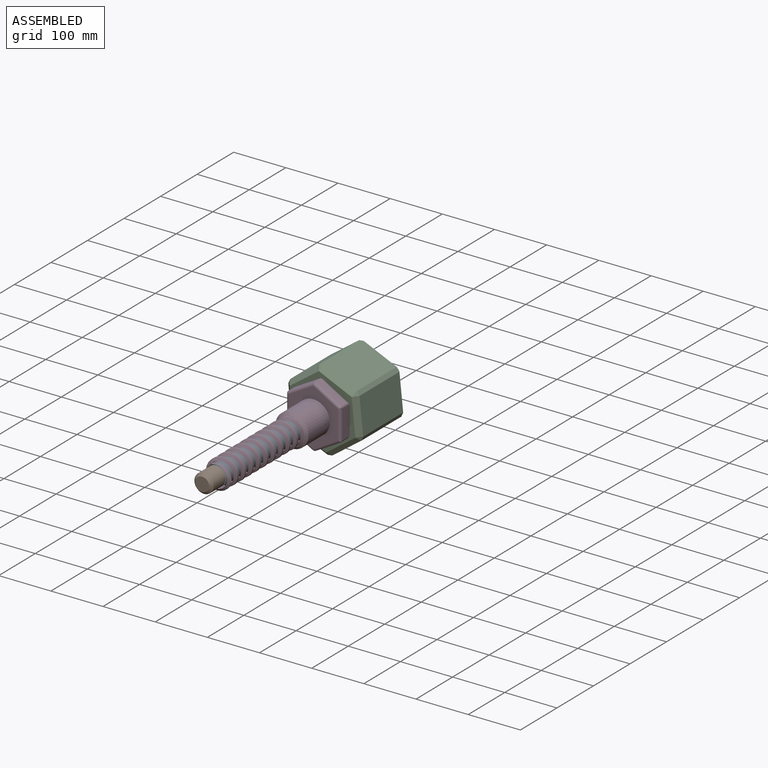
[diagram: assembled view]
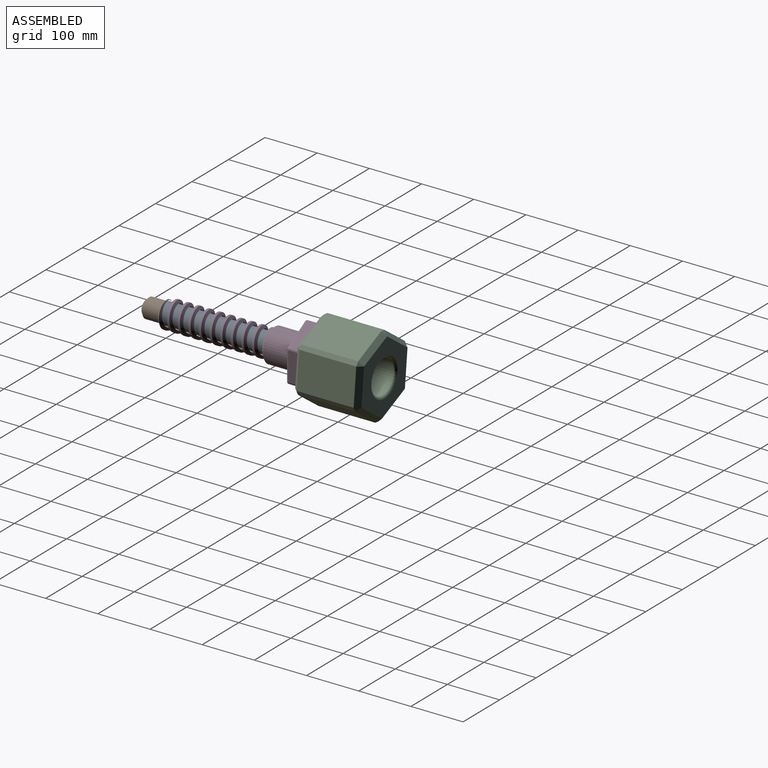
[diagram: assembled view, second angle]
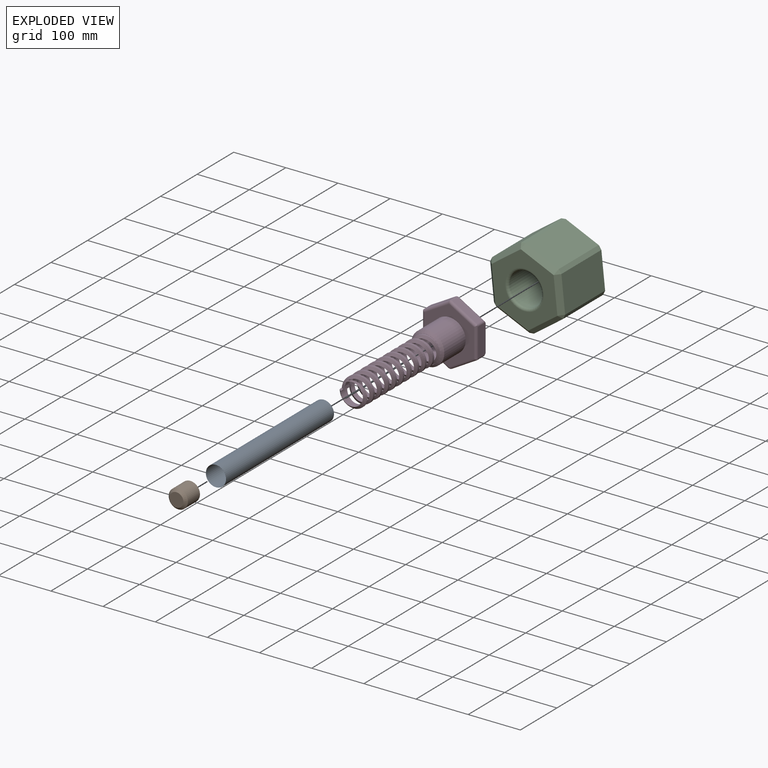
[diagram: exploded view]
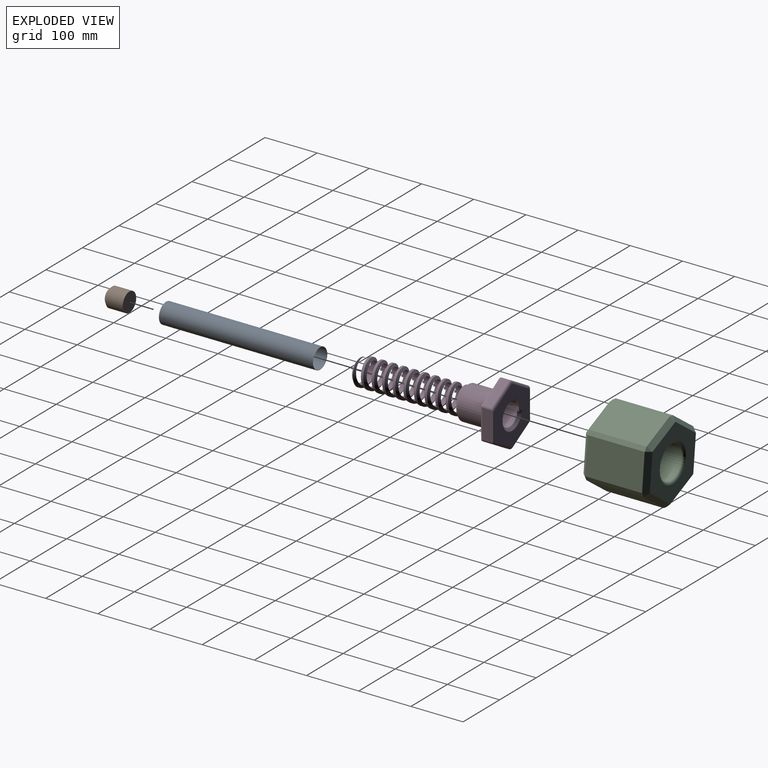
[diagram: exploded view, second angle]
ASSEMBLY  parts=4 mates=2
PART A: 4 faces, bbox 38.9x295.4x38.9 mm
  f0: cylinder r=19.07mm len=294.64mm, axis (0,1,0), area 35300mm2, adj f2,f3
  f1: cylinder r=19.45mm len=295.41mm, axis (0,1,0), area 36101.6mm2, adj f2,f3
  f2: cone r=19.07mm half-angle=45deg, axis (0,-1,0), area 65.5mm2, adj f0,f1
  f3: cone r=24.15mm half-angle=45deg, axis (0,1,0), area 65.5mm2, adj f0,f1
PART B: 4 faces, bbox 36.8x38.1x36.8 mm
  f0: cylinder r=18.41mm len=36.83mm, axis (0,1,0), area 3820.6mm2, adj f2,f3
  f1: plane 26.67x26.67mm, normal (0,-1,0), area 558.6mm2, adj f3
  f2: plane 36.83x36.83mm, normal (0,1,0), area 1065.4mm2, adj f0
  f3: cone r=13.33mm half-angle=45deg, axis (0,1,0), area 716.6mm2, adj f0,f1
PART C: 41 faces, bbox 143.6x127x153.4 mm
  f0: plane 109.4x55.87mm, normal (0.59,0,-0.81), area 7552.5mm2, adj f14,f15,f23,f24
  f1: plane 109.4x68.66mm, normal (0.99,0,0.1), area 7552.5mm2, adj f11,f14,f17,f18
  f2: plane 109.4x63.05mm, normal (0.41,0,0.91), area 7552.5mm2, adj f16,f17,f28,f29
  f3: plane 109.4x55.87mm, normal (-0.59,0,0.81), area 7552.5mm2, adj f27,f28,f36,f37
  f4: plane 109.4x68.66mm, normal (-0.99,0,-0.1), area 7552.5mm2, adj f26,f35,f36,f40
  f5: plane 109.4x63.05mm, normal (-0.41,0,-0.91), area 7552.5mm2, adj f24,f25,f34,f35
  f6: plane 137.32x126.1mm, normal (0,-1,0), area 8058.5mm2, adj f10,f18,f23,f29,f34,f37,f40
  f7: plane 137.32x126.1mm, normal (0,1,0), area 8058.5mm2, adj f9,f11,f15,f16,f25,f26,f27
  f8: cylinder r=32.02mm len=116.84mm, axis (0,-1,0), area 23504.3mm2, adj f9,f10
  f9: torus R=37.1mm, axis (0,-1,0), area 1697.8mm2, adj f7,f8
  f10: torus R=37.1mm, axis (0,-1,0), area 1697.8mm2, adj f6,f8
  f11: plane 69.58x15.93mm, normal (0.7,0.71,0.07), area 859mm2, adj f1,f7,f12,f13
  f12: plane 8.8x8.75mm, normal (0.69,0.65,-0.31), area 51.2mm2, adj f11,f14,f15
  f13: plane 8.8x8.75mm, normal (0.61,0.65,0.44), area 51.2mm2, adj f11,f16,f17
  f14: plane 109.4x8.04mm, normal (0.91,0,-0.41), area 962.6mm2, adj f0,f1,f12,f19
  f15: plane 61.04x47.67mm, normal (0.42,0.71,-0.57), area 859mm2, adj f0,f7,f12,f20
  f16: plane 66.63x36.15mm, normal (0.29,0.71,0.65), area 859mm2, adj f2,f7,f13,f21
  f17: plane 109.4x7.12mm, normal (0.81,0,0.59), area 962.6mm2, adj f1,f2,f13,f22
  f18: plane 69.58x15.93mm, normal (0.7,-0.71,0.07), area 859mm2, adj f1,f6,f19,f22
  f19: plane 8.8x8.75mm, normal (0.69,-0.65,-0.31), area 51.2mm2, adj f14,f18,f23
  f20: plane 8.8x8.75mm, normal (0.08,0.65,-0.75), area 51.2mm2, adj f15,f24,f25
  f21: plane 8.8x8.75mm, normal (-0.08,0.65,0.75), area 51.2mm2, adj f16,f27,f28
  f22: plane 8.8x8.75mm, normal (0.61,-0.65,0.44), area 51.2mm2, adj f17,f18,f29
  f23: plane 61.04x47.67mm, normal (0.42,-0.71,-0.57), area 859mm2, adj f0,f6,f19,f30
  f24: plane 109.4x8.75mm, normal (0.1,0,-0.99), area 962.6mm2, adj f0,f5,f20,f30
  f25: plane 66.63x36.15mm, normal (-0.29,0.71,-0.65), area 859mm2, adj f5,f7,f20,f31
  f26: plane 69.58x15.93mm, normal (-0.7,0.71,-0.07), area 859mm2, adj f4,f7,f31,f32
  f27: plane 61.04x47.67mm, normal (-0.42,0.71,0.57), area 859mm2, adj f3,f7,f21,f32
  f28: plane 109.4x8.75mm, normal (-0.1,0,0.99), area 962.6mm2, adj f2,f3,f21,f33
  f29: plane 66.63x36.15mm, normal (0.29,-0.71,0.65), area 859mm2, adj f2,f6,f22,f33
  f30: plane 8.8x8.75mm, normal (0.08,-0.65,-0.75), area 51.2mm2, adj f23,f24,f34
  f31: plane 8.8x8.75mm, normal (-0.61,0.65,-0.44), area 51.2mm2, adj f25,f26,f35
  f32: plane 8.8x8.75mm, normal (-0.69,0.65,0.31), area 51.2mm2, adj f26,f27,f36
  f33: plane 8.8x8.75mm, normal (-0.08,-0.65,0.75), area 51.2mm2, adj f28,f29,f37
  f34: plane 66.63x36.15mm, normal (-0.29,-0.71,-0.65), area 859mm2, adj f5,f6,f30,f38
  f35: plane 109.4x7.12mm, normal (-0.81,0,-0.59), area 962.6mm2, adj f4,f5,f31,f38
  f36: plane 109.4x8.04mm, normal (-0.91,0,0.41), area 962.6mm2, adj f3,f4,f32,f39
  f37: plane 61.04x47.67mm, normal (-0.42,-0.71,0.57), area 859mm2, adj f3,f6,f33,f39
  f38: plane 8.8x8.75mm, normal (-0.61,-0.65,-0.44), area 51.2mm2, adj f34,f35,f40
  f39: plane 8.8x8.75mm, normal (-0.69,-0.65,0.31), area 51.2mm2, adj f36,f37,f40
  f40: plane 69.58x15.93mm, normal (-0.7,-0.71,-0.07), area 859mm2, adj f4,f6,f38,f39
PART D: 72 faces, bbox 107.2x295.1x119.7 mm
  f0: plane 108.92x99.51mm, normal (0,1,0), area 5895.6mm2, adj f5,f15,f18,f48,f60,f64,f65,f69
  f1: bspline ~211.02x55.69mm, area 9151.6mm2, adj f2,f14,f15,f16,f18,f19,f20,f21
  f2: cylinder r=26.48mm len=198.12mm, axis (0,1,0), area 7685.3mm2, adj f1,f3,f12,f14,f15,f17
  f3: cone r=21.4mm half-angle=45deg, axis (0,1,0), area 751.5mm2, adj f2,f14,f17,f47
  f4: plane 47.22x27.14mm, normal (0.5,0,-0.87), area 830mm2, adj f49,f58,f62,f64
  f5: plane 54.51x20.37mm, normal (1,0,0), area 1105.3mm2, adj f0,f50,f59,f60,f62,f64
  f6: plane 47.11x27.32mm, normal (0.5,0,0.87), area 830mm2, adj f51,f59,f60,f61
  f7: plane 47.22x27.14mm, normal (-0.5,0,0.87), area 830mm2, adj f52,f61,f65,f66
  f8: plane 54.46x15.24mm, normal (-1,0,0), area 830mm2, adj f53,f54,f66,f70
  f9: plane 47.11x27.32mm, normal (-0.5,0,-0.87), area 830mm2, adj f54,f56,f58,f69
  f10: plane 108.92x94.43mm, normal (0,-1,0), area 4538.5mm2, adj f11,f49,f50,f51,f52,f53,f56
  f11: cylinder r=31.75mm len=63.5mm, axis (0,1,0), area 11654.3mm2, adj f10,f13
  f12: plane 53.34x53.34mm, normal (0,-1,0), area 31.8mm2, adj f2,f13,f16
  f13: cone r=26.67mm half-angle=45deg, axis (0,1,0), area 1318.5mm2, adj f11,f12
  f14: plane 10.67x5.08mm, normal (0,0,1), area 33.9mm2, adj f1,f2,f3,f47
  f15: plane 103.52x8.61mm, normal (0,0,-1), area 439.7mm2, adj f0,f1,f2,f16,f17,f18,f37,f38
  f16: cylinder r=26.48mm len=52.96mm, axis (0,1,0), area 466.6mm2, adj f1,f12,f15
  f17: bspline ~208.99x55.69mm, area 8851mm2, adj f2,f3,f15,f19,f20,f21,f22,f23
  f18: extruded ~103.52x23.02mm, area 1339.8mm2, adj f0,f1,f15,f37,f48
  f19: extruded ~14.62x12.62mm, area 162.1mm2, adj f1,f17,f28,f46
  f20: extruded ~14.62x12.62mm, area 162.1mm2, adj f1,f17,f29,f45
  f21: extruded ~14.62x12.62mm, area 162.1mm2, adj f1,f17,f30,f44
  f22: extruded ~14.62x12.62mm, area 162.1mm2, adj f1,f17,f31,f43
  f23: extruded ~14.62x12.62mm, area 162.1mm2, adj f1,f17,f32,f42
  f24: extruded ~14.62x12.62mm, area 162.1mm2, adj f1,f17,f33,f41
  f25: extruded ~14.62x12.62mm, area 162.1mm2, adj f1,f17,f34,f40
  f26: extruded ~14.62x12.62mm, area 162.1mm2, adj f1,f17,f35,f39
  f27: extruded ~14.62x12.62mm, area 162.1mm2, adj f1,f17,f36,f38
  f28: plane 14.62x3.53mm, normal (0,0,-1), area 44.5mm2, adj f1,f17,f19,f47
  f29: plane 14.62x3.53mm, normal (0,0,-1), area 44.5mm2, adj f1,f17,f20,f46
  f30: plane 14.62x3.53mm, normal (0,0,-1), area 44.5mm2, adj f1,f17,f21,f45
  f31: plane 14.62x3.53mm, normal (0,0,-1), area 44.5mm2, adj f1,f17,f22,f44
  f32: plane 14.62x3.53mm, normal (0,0,-1), area 44.5mm2, adj f1,f17,f23,f43
  f33: plane 14.62x3.53mm, normal (0,0,-1), area 44.5mm2, adj f1,f17,f24,f42
  f34: plane 14.62x3.53mm, normal (0,0,-1), area 44.5mm2, adj f1,f17,f25,f41
  f35: plane 14.62x3.53mm, normal (0,0,-1), area 44.5mm2, adj f1,f17,f26,f40
  f36: plane 14.62x3.53mm, normal (0,0,-1), area 44.5mm2, adj f1,f17,f27,f39
  f37: cylinder r=21.4mm len=94.36mm, axis (0,-1,0), area 10307.8mm2, adj f1,f15,f18,f48
  f38: cylinder r=21.4mm len=42.8mm, axis (0,-1,0), area 1274.8mm2, adj f1,f15,f17,f27
  f39: cylinder r=21.4mm len=42.8mm, axis (0,-1,0), area 1274.8mm2, adj f1,f17,f26,f36
  f40: cylinder r=21.4mm len=42.8mm, axis (0,-1,0), area 1274.8mm2, adj f1,f17,f25,f35
  f41: cylinder r=21.4mm len=42.8mm, axis (0,-1,0), area 1274.8mm2, adj f1,f17,f24,f34
  f42: cylinder r=21.4mm len=42.8mm, axis (0,-1,0), area 1274.8mm2, adj f1,f17,f23,f33
  f43: cylinder r=21.4mm len=42.8mm, axis (0,-1,0), area 1274.8mm2, adj f1,f17,f22,f32
  f44: cylinder r=21.4mm len=42.8mm, axis (0,-1,0), area 1274.8mm2, adj f1,f17,f21,f31
  f45: cylinder r=21.4mm len=42.8mm, axis (0,-1,0), area 1274.8mm2, adj f1,f17,f20,f30
  f46: cylinder r=21.4mm len=42.8mm, axis (0,-1,0), area 1274.8mm2, adj f1,f17,f19,f29
  f47: cylinder r=21.4mm len=42.8mm, axis (0,-1,0), area 1105.5mm2, adj f3,f14,f17,f28
  f48: cone r=26.48mm half-angle=45deg, axis (0,1,0), area 926.9mm2, adj f0,f15,f18,f37
  f49: cylinder r=5.08mm len=51.95mm, axis (-0.87,0,-0.5), area 444.7mm2, adj f4,f10,f50,f57,f62
  f50: cylinder r=5.08mm len=59.55mm, axis (0,0,-1), area 454.8mm2, adj f5,f10,f49,f51,f59,f62
  f51: cylinder r=5.08mm len=54.05mm, axis (0.87,0,-0.5), area 454.8mm2, adj f6,f10,f50,f52,f59,f61
  f52: cylinder r=5.08mm len=54.15mm, axis (0.87,0,0.5), area 454.8mm2, adj f7,f10,f51,f53,f61,f66
  f53: cylinder r=5.08mm len=57.01mm, axis (0,0,1), area 444.7mm2, adj f8,f10,f52,f55,f66
  f54: cylinder r=5.08mm len=15.24mm, axis (0,1,0), area 81.1mm2, adj f8,f9,f55,f71
  f55: sphere r=5.08mm, area 27mm2, adj f53,f54,f56
  f56: cylinder r=5.08mm len=49.66mm, axis (-0.87,0,0.5), area 434.6mm2, adj f9,f10,f55,f57
  f57: sphere r=5.08mm, area 27mm2, adj f49,f56,f58
  f58: cylinder r=5.08mm len=15.24mm, axis (0,1,0), area 81.1mm2, adj f4,f9,f57,f67
  f59: cylinder r=5.08mm len=22.18mm, axis (0,1,0), area 99.5mm2, adj f5,f6,f50,f51,f60
  f60: cylinder r=5.08mm len=54.73mm, axis (-0.87,0,0.5), area 459.9mm2, adj f0,f5,f6,f59,f63
  f61: cylinder r=5.08mm len=17.78mm, axis (0,1,0), area 87.8mm2, adj f6,f7,f51,f52,f63
  f62: cylinder r=5.08mm len=22.18mm, axis (0,1,0), area 99.5mm2, adj f4,f5,f49,f50,f64
  f63: sphere r=5.08mm, area 27mm2, adj f60,f61,f65
  f64: cylinder r=5.08mm len=54.83mm, axis (0.87,0,0.5), area 459.9mm2, adj f0,f4,f5,f62,f67
  f65: cylinder r=5.08mm len=49.75mm, axis (-0.87,0,-0.5), area 434.6mm2, adj f0,f7,f63,f68
  f66: cylinder r=5.08mm len=17.78mm, axis (0,1,0), area 87.8mm2, adj f7,f8,f52,f53,f68
  f67: sphere r=5.08mm, area 27mm2, adj f58,f64,f69
  f68: sphere r=5.08mm, area 27mm2, adj f65,f66,f70
  f69: cylinder r=5.08mm len=49.66mm, axis (0.87,0,-0.5), area 434.6mm2, adj f0,f9,f67,f71
  f70: cylinder r=5.08mm len=54.47mm, axis (0,0,-1), area 434.6mm2, adj f0,f8,f68,f71
  f71: sphere r=5.08mm, area 27mm2, adj f54,f69,f70
PLACE A rot(axis=(0,1,0),65deg) t=(-128.8,150.42,160.11)mm
PLACE B rot(axis=(0,-1,0),25deg) t=(-128.8,-149.3,160.11)mm
PLACE C t=(-128.79,269.07,159.97)mm
PLACE D t=(-128.79,129.37,159.97)mm
MATE revolute D.f2 <-> C.f8  axis (0,1,0) through (-128.79,142.07,159.97)mm
MATE slider B.f0 <-> A.f0  axis (0,1,0) through (-128.8,-149.3,160.11)mm
